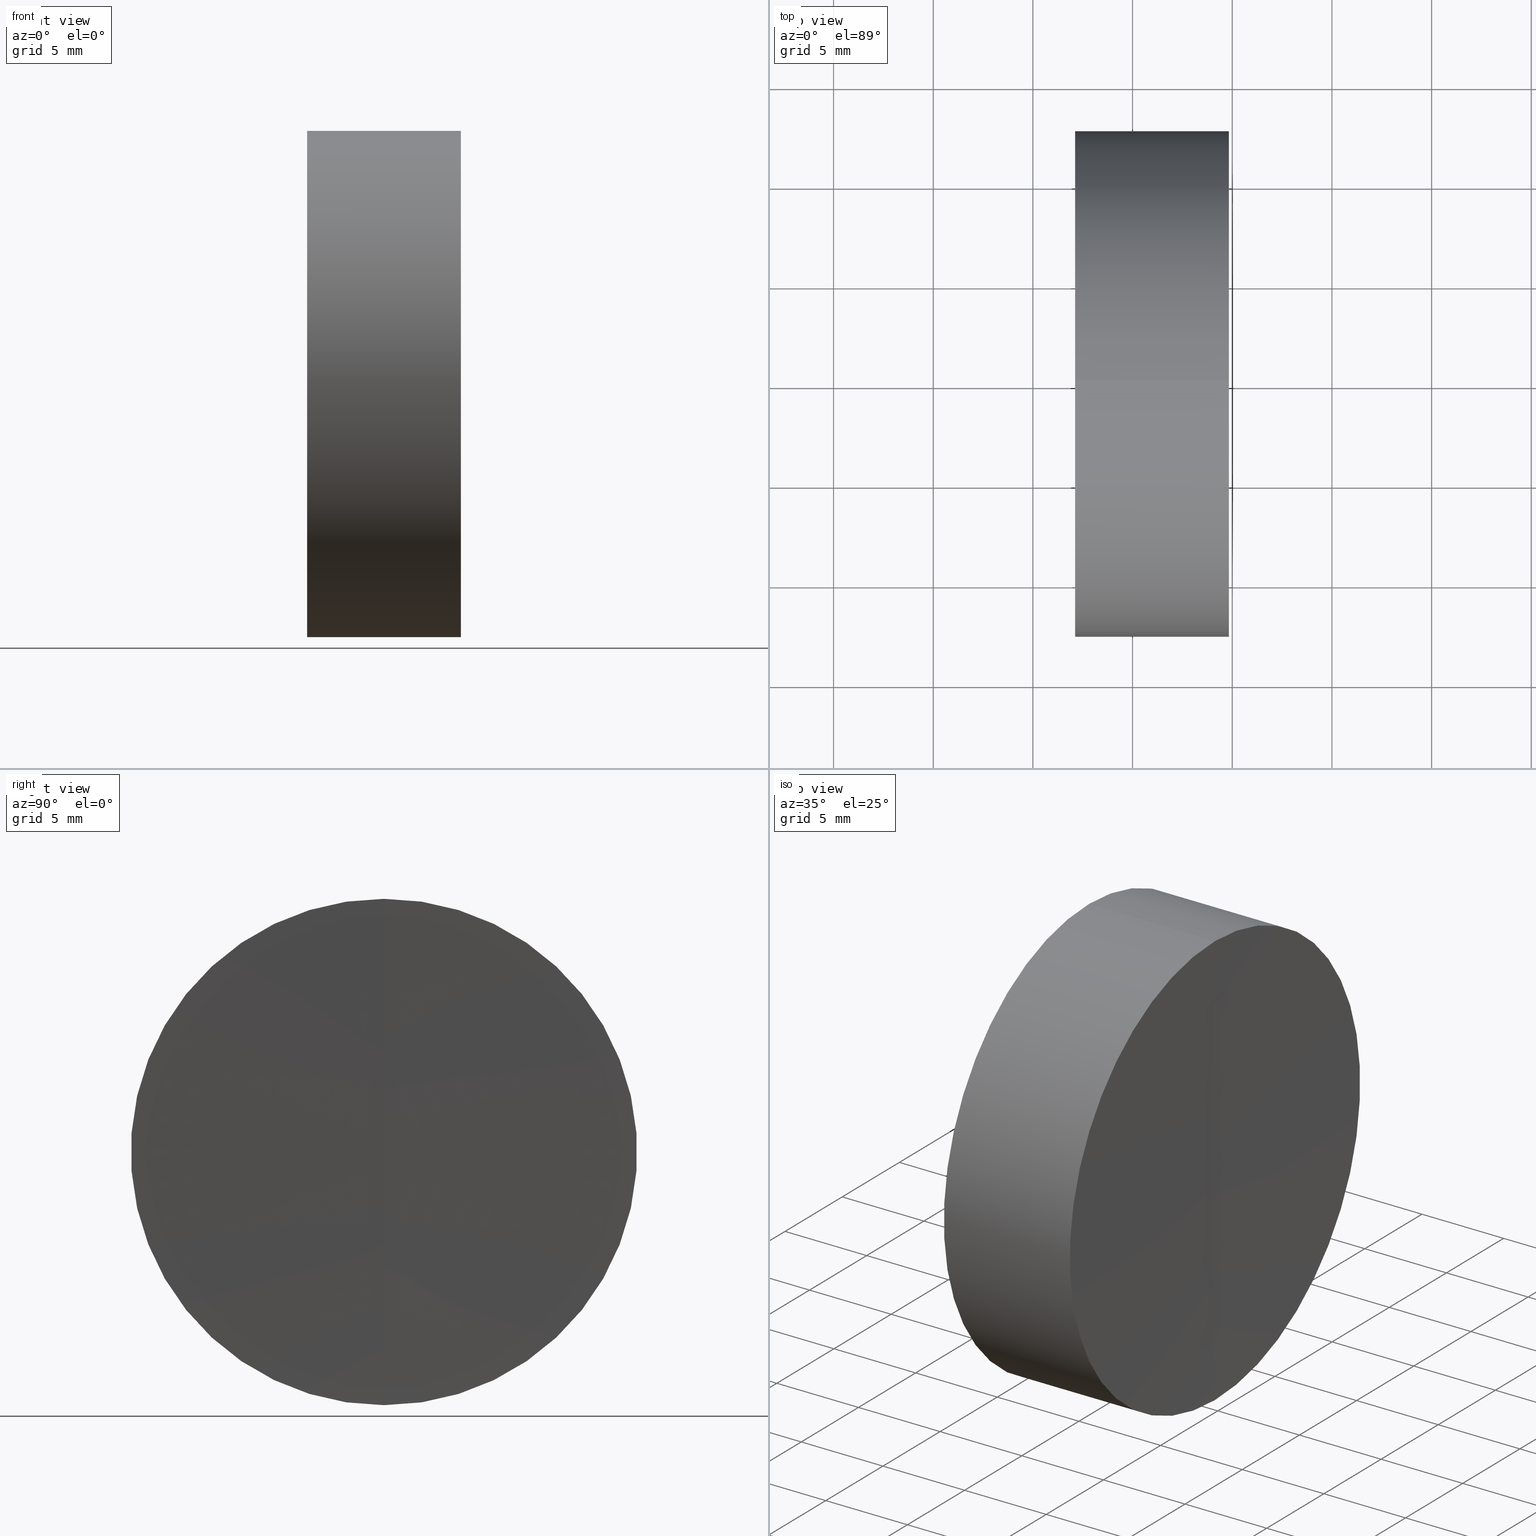
[diagram: canonical four-view strip — front | top / right | iso, engineering-drawing reading convention]
A machine part, canonical four-view strip (front | top / right | iso — engineering-drawing reading convention). The complete STEP part file that produces these views, byte-faithful:
ISO-10303-21;
HEADER;
FILE_DESCRIPTION (( 'STEP AP214' ),
    '1' );
FILE_NAME ('145200.STEP',
    '2019-06-13T07:39:02',
    ( 'user' ),
    ( '΢���й�' ),
    'SwSTEP 2.0',
    'SolidWorks 2016',
    '' );
FILE_SCHEMA (( 'AUTOMOTIVE_DESIGN' ));
ENDSEC;

DATA;
#1 = CIRCLE ( 'NONE', #185, 12.70000000000002900 ) ;
#2 = AXIS2_PLACEMENT_3D ( 'NONE', #339, #309, #262 ) ;
#3 = CIRCLE ( 'NONE', #310, 49.90000000000014800 ) ;
#4 = CIRCLE ( 'NONE', #167, 12.70000000000004500 ) ;
#5 = CARTESIAN_POINT ( 'NONE',  ( 859.6946505410971900, 0.0000000000000000000, 0.0000000000000000000 ) ) ;
#6 = FACE_OUTER_BOUND ( 'NONE', #227, .T. ) ;
#7 = ORIENTED_EDGE ( 'NONE', *, *, #250, .T. ) ;
#8 = DIRECTION ( 'NONE',  ( 0.0000000000000000000, 0.0000000000000000000, -1.000000000000000000 ) ) ;
#9 = CARTESIAN_POINT ( 'NONE',  ( -0.8160621761658039000, 0.0000000000000000000, 0.0000000000000000000 ) ) ;
#10 = AXIS2_PLACEMENT_3D ( 'NONE', #256, #120, #20 ) ;
#11 = DIRECTION ( 'NONE',  ( 0.0000000000000000000, 1.000000000000000000, 0.0000000000000000000 ) ) ;
#12 = DIRECTION ( 'NONE',  ( -1.000000000000000000, -0.0000000000000000000, 1.836970198721029900E-016 ) ) ;
#13 = SURFACE_STYLE_FILL_AREA ( #304 ) ;
#14 = ADVANCED_FACE ( 'NONE', ( #34 ), #329, .F. ) ;
#15 = DIRECTION ( 'NONE',  ( 0.0000000000000000000, 0.0000000000000000000, 1.000000000000000000 ) ) ;
#16 = MECHANICAL_DESIGN_GEOMETRIC_PRESENTATION_REPRESENTATION (  '', ( #174 ), #284 ) ;
#17 = ORIENTED_EDGE ( 'NONE', *, *, #293, .F. ) ;
#18 = CARTESIAN_POINT ( 'NONE',  ( 259.6946505410971900, 0.0000000000000000000, -3.673940397442059500E-014 ) ) ;
#19 = ADVANCED_FACE ( 'NONE', ( #207 ), #73, .F. ) ;
#20 = DIRECTION ( 'NONE',  ( 0.0000000000000000000, 0.0000000000000000000, 1.000000000000000000 ) ) ;
#21 = DIRECTION ( 'NONE',  ( -1.000000000000000000, -0.0000000000000000000, 1.836970198721029900E-016 ) ) ;
#22 = AXIS2_PLACEMENT_3D ( 'NONE', #181, #238, #302 ) ;
#23 = CIRCLE ( 'NONE', #347, 600.0000000000000000 ) ;
#24 = ORIENTED_EDGE ( 'NONE', *, *, #265, .F. ) ;
#25 = CIRCLE ( 'NONE', #2, 12.69999999999999900 ) ;
#26 = CIRCLE ( 'NONE', #277, 49.90000000000015500 ) ;
#27 = AXIS2_PLACEMENT_3D ( 'NONE', #171, #192, #144 ) ;
#28 = FACE_OUTER_BOUND ( 'NONE', #288, .T. ) ;
#29 = LINE ( 'NONE', #247, #332 ) ;
#30 = EDGE_CURVE ( 'NONE', #163, #271, #325, .T. ) ;
#31 = PRODUCT_DEFINITION_CONTEXT ( 'detailed design', #80, 'design' ) ;
#32 = CARTESIAN_POINT ( 'NONE',  ( 305.5946505410973400, 0.0000000000000000000, -3.235630404515127800E-022 ) ) ;
#33 = ADVANCED_FACE ( 'NONE', ( #6 ), #153, .F. ) ;
#34 = FACE_OUTER_BOUND ( 'NONE', #170, .T. ) ;
#35 = CARTESIAN_POINT ( 'NONE',  ( 257.3378375505981200, 0.0000000000000000000, -4.742210204816824600E-014 ) ) ;
#36 = CARTESIAN_POINT ( 'NONE',  ( 305.5946505410973400, 0.0000000000000000000, -3.235630404515127800E-022 ) ) ;
#37 = CYLINDRICAL_SURFACE ( 'NONE', #290, 12.70000000000001400 ) ;
#38 = EDGE_CURVE ( 'NONE', #113, #276, #315, .T. ) ;
#39 = DIRECTION ( 'NONE',  ( -2.249639673992786700E-032, -1.000000000000000000, -1.224646799147353200E-016 ) ) ;
#40 = ADVANCED_FACE ( 'NONE', ( #137 ), #98, .F. ) ;
#41 = CARTESIAN_POINT ( 'NONE',  ( 252.1199418144257200, 0.0000000000000000000, 0.0000000000000000000 ) ) ;
#42 = CLOSED_SHELL ( 'NONE', ( #19, #151, #33, #281, #182, #14 ) ) ;
#43 = DIRECTION ( 'NONE',  ( 0.0000000000000000000, 0.0000000000000000000, -1.000000000000000000 ) ) ;
#44 = VECTOR ( 'NONE', #21, 1000.000000000000000 ) ;
#45 = CARTESIAN_POINT ( 'NONE',  ( 305.5946505410973400, 0.0000000000000000000, -3.235630404515127800E-022 ) ) ;
#46 = ORIENTED_EDGE ( 'NONE', *, *, #38, .T. ) ;
#47 = DIRECTION ( 'NONE',  ( -1.000000000000000000, -0.0000000000000000000, 1.836970198721029900E-016 ) ) ;
#48 = STYLED_ITEM ( 'NONE', ( #55 ), #196 ) ;
#49 = DIRECTION ( 'NONE',  ( 0.0000000000000000000, 0.0000000000000000000, 1.000000000000000000 ) ) ;
#50 = CYLINDRICAL_SURFACE ( 'NONE', #131, 12.70000000000004500 ) ;
#51 = DIRECTION ( 'NONE',  ( 0.0000000000000000000, -1.224646799147353200E-016, 1.000000000000000000 ) ) ;
#52 = MANIFOLD_SOLID_BREP ( '��ת3', #140 ) ;
#53 = VERTEX_POINT ( 'NONE', #150 ) ;
#54 = PRESENTATION_LAYER_ASSIGNMENT (  '', '', ( #319 ) ) ;
#55 = PRESENTATION_STYLE_ASSIGNMENT (( #157 ) ) ;
#56 = AXIS2_PLACEMENT_3D ( 'NONE', #266, #121, #15 ) ;
#57 = ORIENTED_EDGE ( 'NONE', *, *, #274, .F. ) ;
#58 = ORIENTED_EDGE ( 'NONE', *, *, #229, .F. ) ;
#59 = ORIENTED_EDGE ( 'NONE', *, *, #275, .F. ) ;
#60 = FACE_OUTER_BOUND ( 'NONE', #312, .T. ) ;
#61 = ORIENTED_EDGE ( 'NONE', *, *, #211, .T. ) ;
#62 = ORIENTED_EDGE ( 'NONE', *, *, #275, .T. ) ;
#63 = CARTESIAN_POINT ( 'NONE',  ( 257.3378375505981200, 0.0000000000000000000, 0.0000000000000000000 ) ) ;
#64 = MECHANICAL_DESIGN_GEOMETRIC_PRESENTATION_REPRESENTATION (  '', ( #319 ), #231 ) ;
#65 = DIRECTION ( 'NONE',  ( 0.0000000000000000000, 1.000000000000000000, 0.0000000000000000000 ) ) ;
#66 = DIRECTION ( 'NONE',  ( 0.0000000000000000000, -1.000000000000000000, 0.0000000000000000000 ) ) ;
#67 = VERTEX_POINT ( 'NONE', #244 ) ;
#68 = DIRECTION ( 'NONE',  ( -1.000000000000000000, -0.0000000000000000000, 1.836970198721029900E-016 ) ) ;
#69 = CARTESIAN_POINT ( 'NONE',  ( 259.8290739324706900, 0.0000000000000000000, 0.0000000000000000000 ) ) ;
#70 = CIRCLE ( 'NONE', #225, 49.90000000000014800 ) ;
#71 = AXIS2_PLACEMENT_3D ( 'NONE', #5, #96, #342 ) ;
#72 = CARTESIAN_POINT ( 'NONE',  ( 305.5946505410973400, 0.0000000000000000000, -3.235630404515127800E-022 ) ) ;
#73 = SPHERICAL_SURFACE ( 'NONE', #152, 49.90000000000014800 ) ;
#74 = EDGE_LOOP ( 'NONE', ( #59, #91, #61 ) ) ;
#75 = PRODUCT_DEFINITION_FORMATION_WITH_SPECIFIED_SOURCE ( '�κ�', '', #81, .NOT_KNOWN. ) ;
#76 = APPLICATION_CONTEXT ( 'automotive_design' ) ;
#77 = DIRECTION ( 'NONE',  ( 0.0000000000000000000, 0.0000000000000000000, 1.000000000000000000 ) ) ;
#78 = FACE_OUTER_BOUND ( 'NONE', #336, .T. ) ;
#79 = DIRECTION ( 'NONE',  ( -1.000000000000000000, -0.0000000000000000000, 1.836970198721029900E-016 ) ) ;
#80 = APPLICATION_CONTEXT ( 'automotive_design' ) ;
#81 = PRODUCT ( '145200', '145200', '', ( #198 ) ) ;
#82 = ORIENTED_EDGE ( 'NONE', *, *, #230, .T. ) ;
#83 = AXIS2_PLACEMENT_3D ( 'NONE', #88, #148, #8 ) ;
#84 = LINE ( 'NONE', #307, #240 ) ;
#85 = CIRCLE ( 'NONE', #114, 12.69999999999999900 ) ;
#86 = PRESENTATION_STYLE_ASSIGNMENT (( #218 ) ) ;
#87 = FACE_OUTER_BOUND ( 'NONE', #317, .T. ) ;
#88 = CARTESIAN_POINT ( 'NONE',  ( 305.5946505410973400, 0.0000000000000000000, -3.235630404515127800E-022 ) ) ;
#89 = AXIS2_PLACEMENT_3D ( 'NONE', #222, #267, #326 ) ;
#90 = CARTESIAN_POINT ( 'NONE',  ( 255.6946505410971900, 0.0000000000000000000, 6.110987204182271600E-015 ) ) ;
#91 = ORIENTED_EDGE ( 'NONE', *, *, #136, .T. ) ;
#92 = DIRECTION ( 'NONE',  ( -0.0000000000000000000, -1.000000000000000000, -0.0000000000000000000 ) ) ;
#93 = CARTESIAN_POINT ( 'NONE',  ( 252.1199418144257200, 0.0000000000000000000, 12.69999999999998900 ) ) ;
#94 = EDGE_CURVE ( 'NONE', #295, #243, #115, .T. ) ;
#95 = COLOUR_RGB ( '',1.000000000000000000, 1.000000000000000000, 1.000000000000000000 ) ;
#96 = DIRECTION ( 'NONE',  ( -0.0000000000000000000, -1.000000000000000000, -0.0000000000000000000 ) ) ;
#97 = CARTESIAN_POINT ( 'NONE',  ( 253.6946505410974200, 0.0000000000000000000, -6.368163305871125600E-015 ) ) ;
#98 = SPHERICAL_SURFACE ( 'NONE', #71, 600.0000000000000000 ) ;
#99 = AXIS2_PLACEMENT_3D ( 'NONE', #45, #66, #105 ) ;
#100 = FACE_OUTER_BOUND ( 'NONE', #74, .T. ) ;
#101 = EDGE_CURVE ( 'NONE', #53, #133, #165, .T. ) ;
#102 = CARTESIAN_POINT ( 'NONE',  ( 257.3378375505981200, 0.0000000000000000000, 12.69999999999999900 ) ) ;
#103 =( NAMED_UNIT ( * ) SI_UNIT ( $, .STERADIAN. ) SOLID_ANGLE_UNIT ( ) );
#104 = ORIENTED_EDGE ( 'NONE', *, *, #211, .F. ) ;
#105 = DIRECTION ( 'NONE',  ( 0.0000000000000000000, 0.0000000000000000000, -1.000000000000000000 ) ) ;
#106 = APPLICATION_PROTOCOL_DEFINITION ( 'draft international standard', 'automotive_design', 1998, #80 ) ;
#107 =( NAMED_UNIT ( * ) PLANE_ANGLE_UNIT ( ) SI_UNIT ( $, .RADIAN. ) );
#108 = CARTESIAN_POINT ( 'NONE',  ( -0.8160621761658039000, 0.0000000000000000000, 0.0000000000000000000 ) ) ;
#109 = AXIS2_PLACEMENT_3D ( 'NONE', #340, #199, #299 ) ;
#110 = APPLICATION_PROTOCOL_DEFINITION ( 'draft international standard', 'automotive_design', 1998, #76 ) ;
#111 =( LENGTH_UNIT ( ) NAMED_UNIT ( * ) SI_UNIT ( .MILLI., .METRE. ) );
#112 = SURFACE_SIDE_STYLE ('',( #160 ) ) ;
#113 = VERTEX_POINT ( 'NONE', #97 ) ;
#114 = AXIS2_PLACEMENT_3D ( 'NONE', #69, #154, #194 ) ;
#115 = CIRCLE ( 'NONE', #22, 12.70000000000002900 ) ;
#116 =( GEOMETRIC_REPRESENTATION_CONTEXT ( 3 ) GLOBAL_UNCERTAINTY_ASSIGNED_CONTEXT ( ( #301 ) ) GLOBAL_UNIT_ASSIGNED_CONTEXT ( ( #316, #107, #117 ) ) REPRESENTATION_CONTEXT ( 'NONE', 'WORKASPACE' ) );
#117 =( NAMED_UNIT ( * ) SI_UNIT ( $, .STERADIAN. ) SOLID_ANGLE_UNIT ( ) );
#118 = PRODUCT_DEFINITION ( 'δ֪', '', #75, #31 ) ;
#119 = ORIENTED_EDGE ( 'NONE', *, *, #254, .T. ) ;
#120 = DIRECTION ( 'NONE',  ( -0.0000000000000000000, 1.000000000000000000, 0.0000000000000000000 ) ) ;
#121 = DIRECTION ( 'NONE',  ( -1.000000000000000000, -0.0000000000000000000, -0.0000000000000000000 ) ) ;
#122 =( NAMED_UNIT ( * ) SI_UNIT ( $, .STERADIAN. ) SOLID_ANGLE_UNIT ( ) );
#123 = ORIENTED_EDGE ( 'NONE', *, *, #30, .T. ) ;
#124 = DIRECTION ( 'NONE',  ( -1.000000000000000000, -0.0000000000000000000, -0.0000000000000000000 ) ) ;
#125 = AXIS2_PLACEMENT_3D ( 'NONE', #311, #68, #77 ) ;
#126 = CYLINDRICAL_SURFACE ( 'NONE', #323, 12.70000000000004500 ) ;
#127 = DIRECTION ( 'NONE',  ( -1.000000000000000000, -0.0000000000000000000, 1.836970198721029900E-016 ) ) ;
#128 = ORIENTED_EDGE ( 'NONE', *, *, #30, .F. ) ;
#129 = DIRECTION ( 'NONE',  ( -1.000000000000000000, -0.0000000000000000000, -0.0000000000000000000 ) ) ;
#130 = DIRECTION ( 'NONE',  ( 1.000000000000000000, 0.0000000000000000000, 0.0000000000000000000 ) ) ;
#131 = AXIS2_PLACEMENT_3D ( 'NONE', #9, #127, #285 ) ;
#132 = FACE_OUTER_BOUND ( 'NONE', #257, .T. ) ;
#133 = VERTEX_POINT ( 'NONE', #18 ) ;
#134 = CARTESIAN_POINT ( 'NONE',  ( 252.1199418144257200, 0.0000000000000000000, -4.646359015143001300E-014 ) ) ;
#135 = ORIENTED_EDGE ( 'NONE', *, *, #186, .F. ) ;
#136 = EDGE_CURVE ( 'NONE', #243, #295, #1, .T. ) ;
#137 = FACE_OUTER_BOUND ( 'NONE', #330, .T. ) ;
#138 = DIRECTION ( 'NONE',  ( 0.0000000000000000000, 0.0000000000000000000, 1.000000000000000000 ) ) ;
#139 = DIRECTION ( 'NONE',  ( 0.0000000000000000000, 0.0000000000000000000, 1.000000000000000000 ) ) ;
#140 = CLOSED_SHELL ( 'NONE', ( #305, #161, #291, #286, #259, #40 ) ) ;
#141 = FACE_OUTER_BOUND ( 'NONE', #212, .T. ) ;
#142 = ORIENTED_EDGE ( 'NONE', *, *, #136, .F. ) ;
#143 = ORIENTED_EDGE ( 'NONE', *, *, #254, .F. ) ;
#144 = DIRECTION ( 'NONE',  ( 0.0000000000000000000, -1.224646799147353000E-016, 1.000000000000000000 ) ) ;
#145 = COLOUR_RGB ( '',1.000000000000000000, 1.000000000000000000, 1.000000000000000000 ) ;
#146 = ORIENTED_EDGE ( 'NONE', *, *, #293, .T. ) ;
#147 = DIRECTION ( 'NONE',  ( -1.000000000000000000, -0.0000000000000000000, -0.0000000000000000000 ) ) ;
#148 = DIRECTION ( 'NONE',  ( -0.0000000000000000000, -1.000000000000000000, -0.0000000000000000000 ) ) ;
#149 = VERTEX_POINT ( 'NONE', #90 ) ;
#150 = CARTESIAN_POINT ( 'NONE',  ( 259.8290739324706900, 1.555301434917139400E-015, -12.69999999999999900 ) ) ;
#151 = ADVANCED_FACE ( 'NONE', ( #249 ), #50, .T. ) ;
#152 = AXIS2_PLACEMENT_3D ( 'NONE', #32, #92, #258 ) ;
#153 = SPHERICAL_SURFACE ( 'NONE', #10, 52.00000000000003600 ) ;
#154 = DIRECTION ( 'NONE',  ( -1.000000000000000000, -0.0000000000000000000, -0.0000000000000000000 ) ) ;
#155 = CARTESIAN_POINT ( 'NONE',  ( 859.6946505410971900, 0.0000000000000000000, 0.0000000000000000000 ) ) ;
#156 = ORIENTED_EDGE ( 'NONE', *, *, #260, .F. ) ;
#157 = SURFACE_STYLE_USAGE ( .BOTH. , #112 ) ;
#158 = PRODUCT_RELATED_PRODUCT_CATEGORY ( 'part', '', ( #81 ) ) ;
#159 = DIRECTION ( 'NONE',  ( -0.0000000000000000000, -1.000000000000000000, -0.0000000000000000000 ) ) ;
#160 = SURFACE_STYLE_FILL_AREA ( #345 ) ;
#161 = ADVANCED_FACE ( 'NONE', ( #78 ), #255, .T. ) ;
#162 = DIRECTION ( 'NONE',  ( 0.0000000000000000000, 0.0000000000000000000, 1.000000000000000000 ) ) ;
#163 = VERTEX_POINT ( 'NONE', #102 ) ;
#164 = UNCERTAINTY_MEASURE_WITH_UNIT (LENGTH_MEASURE( 1.000000000000000100E-005 ), #111, 'distance_accuracy_value', 'NONE');
#165 = CIRCLE ( 'NONE', #89, 600.0000000000000000 ) ;
#166 = DIRECTION ( 'NONE',  ( 1.878145495644174200E-016, 0.0000000000000000000, 1.000000000000000000 ) ) ;
#167 = AXIS2_PLACEMENT_3D ( 'NONE', #134, #217, #139 ) ;
#168 = CARTESIAN_POINT ( 'NONE',  ( 0.0000000000000000000, 0.0000000000000000000, 0.0000000000000000000 ) ) ;
#169 =( LENGTH_UNIT ( ) NAMED_UNIT ( * ) SI_UNIT ( .MILLI., .METRE. ) );
#170 = EDGE_LOOP ( 'NONE', ( #273, #253, #251 ) ) ;
#171 = CARTESIAN_POINT ( 'NONE',  ( 201.6946505410973600, 0.0000000000000000000, 4.969511586685587000E-023 ) ) ;
#172 = AXIS2_PLACEMENT_3D ( 'NONE', #195, #214, #43 ) ;
#173 = CIRCLE ( 'NONE', #125, 12.70000000000004500 ) ;
#174 = STYLED_ITEM ( 'NONE', ( #343 ), #228 ) ;
#175 = EDGE_CURVE ( 'NONE', #264, #133, #23, .T. ) ;
#176 = ORIENTED_EDGE ( 'NONE', *, *, #327, .T. ) ;
#177 = DIRECTION ( 'NONE',  ( 0.0000000000000000000, 0.0000000000000000000, 1.000000000000000000 ) ) ;
#178 = CARTESIAN_POINT ( 'NONE',  ( 257.3378375505981200, 1.555301434917142800E-015, -12.70000000000003500 ) ) ;
#179 = PRODUCT_DEFINITION_SHAPE ( 'NONE', 'NONE',  #118 ) ;
#180 = LINE ( 'NONE', #220, #272 ) ;
#181 = CARTESIAN_POINT ( 'NONE',  ( 257.3378375505981200, 0.0000000000000000000, 0.0000000000000000000 ) ) ;
#182 = ADVANCED_FACE ( 'NONE', ( #28 ), #126, .T. ) ;
#183 = ORIENTED_EDGE ( 'NONE', *, *, #38, .F. ) ;
#184 = SURFACE_SIDE_STYLE ('',( #13 ) ) ;
#185 = AXIS2_PLACEMENT_3D ( 'NONE', #63, #124, #49 ) ;
#186 = EDGE_CURVE ( 'NONE', #53, #264, #25, .T. ) ;
#187 = SURFACE_STYLE_USAGE ( .BOTH. , #338 ) ;
#188 = UNCERTAINTY_MEASURE_WITH_UNIT (LENGTH_MEASURE( 1.000000000000000100E-005 ), #280, 'distance_accuracy_value', 'NONE');
#189 = SPHERICAL_SURFACE ( 'NONE', #216, 600.0000000000000000 ) ;
#190 =( NAMED_UNIT ( * ) SI_UNIT ( $, .STERADIAN. ) SOLID_ANGLE_UNIT ( ) );
#191 = FILL_AREA_STYLE_COLOUR ( '', #206 ) ;
#192 = DIRECTION ( 'NONE',  ( 2.249639673992786700E-032, 1.000000000000000000, 1.224646799147353200E-016 ) ) ;
#193 = ORIENTED_EDGE ( 'NONE', *, *, #294, .F. ) ;
#194 = DIRECTION ( 'NONE',  ( 0.0000000000000000000, 0.0000000000000000000, 1.000000000000000000 ) ) ;
#195 = CARTESIAN_POINT ( 'NONE',  ( 201.6946505410973600, 0.0000000000000000000, 4.969511586685587000E-023 ) ) ;
#196 = ADVANCED_BREP_SHAPE_REPRESENTATION ( '145200', ( #228, #52, #334 ), #306 ) ;
#197 = SPHERICAL_SURFACE ( 'NONE', #109, 52.00000000000003600 ) ;
#198 = PRODUCT_CONTEXT ( 'NONE', #76, 'mechanical' ) ;
#199 = DIRECTION ( 'NONE',  ( -0.0000000000000000000, 1.000000000000000000, 0.0000000000000000000 ) ) ;
#200 = MECHANICAL_DESIGN_GEOMETRIC_PRESENTATION_REPRESENTATION (  '', ( #48 ), #116 ) ;
#201 = ORIENTED_EDGE ( 'NONE', *, *, #327, .F. ) ;
#202 = ORIENTED_EDGE ( 'NONE', *, *, #265, .T. ) ;
#203 = DIRECTION ( 'NONE',  ( 0.0000000000000000000, 0.0000000000000000000, 1.000000000000000000 ) ) ;
#204 = DIRECTION ( 'NONE',  ( 0.0000000000000000000, 0.0000000000000000000, 1.000000000000000000 ) ) ;
#205 = ORIENTED_EDGE ( 'NONE', *, *, #252, .F. ) ;
#206 = COLOUR_RGB ( '',1.000000000000000000, 1.000000000000000000, 1.000000000000000000 ) ;
#207 = FACE_OUTER_BOUND ( 'NONE', #318, .T. ) ;
#208 = ORIENTED_EDGE ( 'NONE', *, *, #294, .T. ) ;
#209 = PRESENTATION_LAYER_ASSIGNMENT (  '', '', ( #48 ) ) ;
#210 = SHAPE_DEFINITION_REPRESENTATION ( #179, #196 ) ;
#211 = EDGE_CURVE ( 'NONE', #295, #279, #224, .T. ) ;
#212 = EDGE_LOOP ( 'NONE', ( #24, #314, #341, #142 ) ) ;
#213 = DIRECTION ( 'NONE',  ( 0.0000000000000000000, 1.224646799147353200E-016, -1.000000000000000000 ) ) ;
#214 = DIRECTION ( 'NONE',  ( 0.0000000000000000000, -1.000000000000000000, 0.0000000000000000000 ) ) ;
#215 = ORIENTED_EDGE ( 'NONE', *, *, #94, .F. ) ;
#216 = AXIS2_PLACEMENT_3D ( 'NONE', #328, #159, #344 ) ;
#217 = DIRECTION ( 'NONE',  ( -1.000000000000000000, -0.0000000000000000000, 1.836970198721029900E-016 ) ) ;
#218 = SURFACE_STYLE_USAGE ( .BOTH. , #184 ) ;
#219 = ORIENTED_EDGE ( 'NONE', *, *, #175, .F. ) ;
#220 = CARTESIAN_POINT ( 'NONE',  ( 252.1199418144257200, 0.0000000000000000000, 12.70000000000001400 ) ) ;
#221 = DIRECTION ( 'NONE',  ( -0.0000000000000000000, 1.000000000000000000, 1.224646799147353200E-016 ) ) ;
#222 = CARTESIAN_POINT ( 'NONE',  ( 859.6946505410971900, 0.0000000000000000000, 0.0000000000000000000 ) ) ;
#223 = ORIENTED_EDGE ( 'NONE', *, *, #101, .T. ) ;
#224 = CIRCLE ( 'NONE', #99, 49.90000000000015500 ) ;
#225 = AXIS2_PLACEMENT_3D ( 'NONE', #289, #239, #203 ) ;
#226 = EDGE_LOOP ( 'NONE', ( #123, #119, #193, #205 ) ) ;
#227 = EDGE_LOOP ( 'NONE', ( #183, #176, #146 ) ) ;
#228 = MANIFOLD_SOLID_BREP ( '��ת1', #42 ) ;
#229 = EDGE_CURVE ( 'NONE', #264, #53, #85, .T. ) ;
#230 = EDGE_CURVE ( 'NONE', #163, #149, #3, .T. ) ;
#231 =( GEOMETRIC_REPRESENTATION_CONTEXT ( 3 ) GLOBAL_UNCERTAINTY_ASSIGNED_CONTEXT ( ( #188 ) ) GLOBAL_UNIT_ASSIGNED_CONTEXT ( ( #280, #333, #122 ) ) REPRESENTATION_CONTEXT ( 'NONE', 'WORKASPACE' ) );
#232 = LINE ( 'NONE', #241, #44 ) ;
#233 = DIRECTION ( 'NONE',  ( -1.000000000000000000, -0.0000000000000000000, 1.836970198721029900E-016 ) ) ;
#234 = ORIENTED_EDGE ( 'NONE', *, *, #229, .T. ) ;
#235 = DIRECTION ( 'NONE',  ( 0.0000000000000000000, -1.000000000000000000, -1.224646799147353200E-016 ) ) ;
#236 = FILL_AREA_STYLE_COLOUR ( '', #95 ) ;
#237 = AXIS2_PLACEMENT_3D ( 'NONE', #35, #79, #204 ) ;
#238 = DIRECTION ( 'NONE',  ( -1.000000000000000000, -0.0000000000000000000, -0.0000000000000000000 ) ) ;
#239 = DIRECTION ( 'NONE',  ( -0.0000000000000000000, 1.000000000000000000, 0.0000000000000000000 ) ) ;
#240 = VECTOR ( 'NONE', #147, 1000.000000000000000 ) ;
#241 = CARTESIAN_POINT ( 'NONE',  ( -0.8160621761658015700, 0.0000000000000000000, 12.70000000000004500 ) ) ;
#242 = CARTESIAN_POINT ( 'NONE',  ( 305.5946505410973400, 0.0000000000000000000, -3.235630404515127800E-022 ) ) ;
#243 = VERTEX_POINT ( 'NONE', #178 ) ;
#244 = CARTESIAN_POINT ( 'NONE',  ( 252.1199418144257200, 1.555301434917142800E-015, -12.70000000000004500 ) ) ;
#245 = CARTESIAN_POINT ( 'NONE',  ( 259.8290739324706900, 0.0000000000000000000, 12.69999999999999900 ) ) ;
#246 = AXIS2_PLACEMENT_3D ( 'NONE', #36, #11, #177 ) ;
#247 = CARTESIAN_POINT ( 'NONE',  ( -0.8160621761658063400, 1.555301434917144300E-015, -12.70000000000004500 ) ) ;
#248 = DIRECTION ( 'NONE',  ( 0.0000000000000000000, 1.224646799147353200E-016, -1.000000000000000000 ) ) ;
#249 = FACE_OUTER_BOUND ( 'NONE', #226, .T. ) ;
#250 = EDGE_CURVE ( 'NONE', #271, #163, #303, .T. ) ;
#251 = ORIENTED_EDGE ( 'NONE', *, *, #260, .T. ) ;
#252 = EDGE_CURVE ( 'NONE', #163, #276, #232, .T. ) ;
#253 = ORIENTED_EDGE ( 'NONE', *, *, #250, .F. ) ;
#254 = EDGE_CURVE ( 'NONE', #271, #67, #29, .T. ) ;
#255 = CYLINDRICAL_SURFACE ( 'NONE', #56, 12.70000000000001400 ) ;
#256 = CARTESIAN_POINT ( 'NONE',  ( 201.6946505410973600, 0.0000000000000000000, 4.969511586685587000E-023 ) ) ;
#257 = EDGE_LOOP ( 'NONE', ( #58, #346, #322 ) ) ;
#258 = DIRECTION ( 'NONE',  ( 0.0000000000000000000, 0.0000000000000000000, -1.000000000000000000 ) ) ;
#259 = ADVANCED_FACE ( 'NONE', ( #141 ), #37, .T. ) ;
#260 = EDGE_CURVE ( 'NONE', #271, #149, #70, .T. ) ;
#261 = ORIENTED_EDGE ( 'NONE', *, *, #252, .T. ) ;
#262 = DIRECTION ( 'NONE',  ( 0.0000000000000000000, 0.0000000000000000000, 1.000000000000000000 ) ) ;
#263 = PRESENTATION_LAYER_ASSIGNMENT (  '', '', ( #174 ) ) ;
#264 = VERTEX_POINT ( 'NONE', #245 ) ;
#265 = EDGE_CURVE ( 'NONE', #53, #243, #84, .T. ) ;
#266 = CARTESIAN_POINT ( 'NONE',  ( 252.1199418144257200, 0.0000000000000000000, 0.0000000000000000000 ) ) ;
#267 = DIRECTION ( 'NONE',  ( 0.0000000000000000000, 1.000000000000000000, -0.0000000000000000000 ) ) ;
#268 = ORIENTED_EDGE ( 'NONE', *, *, #94, .T. ) ;
#269 = AXIS2_PLACEMENT_3D ( 'NONE', #72, #65, #162 ) ;
#270 = FILL_AREA_STYLE ('',( #313 ) ) ;
#271 = VERTEX_POINT ( 'NONE', #337 ) ;
#272 = VECTOR ( 'NONE', #129, 1000.000000000000000 ) ;
#273 = ORIENTED_EDGE ( 'NONE', *, *, #230, .F. ) ;
#274 = EDGE_CURVE ( 'NONE', #264, #295, #180, .T. ) ;
#275 = EDGE_CURVE ( 'NONE', #243, #279, #26, .T. ) ;
#276 = VERTEX_POINT ( 'NONE', #93 ) ;
#277 = AXIS2_PLACEMENT_3D ( 'NONE', #242, #221, #51 ) ;
#278 = CARTESIAN_POINT ( 'NONE',  ( 257.3378375505981200, 0.0000000000000000000, 12.70000000000003500 ) ) ;
#279 = VERTEX_POINT ( 'NONE', #287 ) ;
#280 =( LENGTH_UNIT ( ) NAMED_UNIT ( * ) SI_UNIT ( .MILLI., .METRE. ) );
#281 = ADVANCED_FACE ( 'NONE', ( #60 ), #197, .F. ) ;
#282 = DIRECTION ( 'NONE',  ( 0.0000000000000000000, 0.0000000000000000000, 1.000000000000000000 ) ) ;
#283 = SPHERICAL_SURFACE ( 'NONE', #269, 49.90000000000015500 ) ;
#284 =( GEOMETRIC_REPRESENTATION_CONTEXT ( 3 ) GLOBAL_UNCERTAINTY_ASSIGNED_CONTEXT ( ( #164 ) ) GLOBAL_UNIT_ASSIGNED_CONTEXT ( ( #111, #331, #103 ) ) REPRESENTATION_CONTEXT ( 'NONE', 'WORKASPACE' ) );
#285 = DIRECTION ( 'NONE',  ( 1.878145495644174200E-016, 0.0000000000000000000, 1.000000000000000000 ) ) ;
#286 = ADVANCED_FACE ( 'NONE', ( #100 ), #308, .T. ) ;
#287 = CARTESIAN_POINT ( 'NONE',  ( 255.6946505410971900, 0.0000000000000000000, 3.055493440309615300E-015 ) ) ;
#288 = EDGE_LOOP ( 'NONE', ( #143, #7, #261, #17 ) ) ;
#289 = CARTESIAN_POINT ( 'NONE',  ( 305.5946505410973400, 0.0000000000000000000, -3.235630404515127800E-022 ) ) ;
#290 = AXIS2_PLACEMENT_3D ( 'NONE', #41, #292, #282 ) ;
#291 = ADVANCED_FACE ( 'NONE', ( #87 ), #283, .T. ) ;
#292 = DIRECTION ( 'NONE',  ( -1.000000000000000000, -0.0000000000000000000, -0.0000000000000000000 ) ) ;
#293 = EDGE_CURVE ( 'NONE', #67, #276, #173, .T. ) ;
#294 = EDGE_CURVE ( 'NONE', #276, #67, #4, .T. ) ;
#295 = VERTEX_POINT ( 'NONE', #278 ) ;
#296 =( NAMED_UNIT ( * ) PLANE_ANGLE_UNIT ( ) SI_UNIT ( $, .RADIAN. ) );
#297 = AXIS2_PLACEMENT_3D ( 'NONE', #300, #233, #324 ) ;
#298 = CIRCLE ( 'NONE', #27, 52.00000000000003600 ) ;
#299 = DIRECTION ( 'NONE',  ( 0.0000000000000000000, 0.0000000000000000000, 1.000000000000000000 ) ) ;
#300 = CARTESIAN_POINT ( 'NONE',  ( 257.3378375505981200, 0.0000000000000000000, -4.742210204816824600E-014 ) ) ;
#301 = UNCERTAINTY_MEASURE_WITH_UNIT (LENGTH_MEASURE( 1.000000000000000100E-005 ), #316, 'distance_accuracy_value', 'NONE');
#302 = DIRECTION ( 'NONE',  ( 0.0000000000000000000, 0.0000000000000000000, 1.000000000000000000 ) ) ;
#303 = CIRCLE ( 'NONE', #237, 12.70000000000004500 ) ;
#304 = FILL_AREA_STYLE ('',( #236 ) ) ;
#305 = ADVANCED_FACE ( 'NONE', ( #132 ), #189, .F. ) ;
#306 =( GEOMETRIC_REPRESENTATION_CONTEXT ( 3 ) GLOBAL_UNCERTAINTY_ASSIGNED_CONTEXT ( ( #320 ) ) GLOBAL_UNIT_ASSIGNED_CONTEXT ( ( #169, #296, #190 ) ) REPRESENTATION_CONTEXT ( 'NONE', 'WORKASPACE' ) );
#307 = CARTESIAN_POINT ( 'NONE',  ( 252.1199418144257200, 1.555301434917140200E-015, -12.70000000000001400 ) ) ;
#308 = SPHERICAL_SURFACE ( 'NONE', #246, 49.90000000000015500 ) ;
#309 = DIRECTION ( 'NONE',  ( -1.000000000000000000, -0.0000000000000000000, -0.0000000000000000000 ) ) ;
#310 = AXIS2_PLACEMENT_3D ( 'NONE', #335, #39, #248 ) ;
#311 = CARTESIAN_POINT ( 'NONE',  ( 252.1199418144257200, 0.0000000000000000000, -4.646359015143001300E-014 ) ) ;
#312 = EDGE_LOOP ( 'NONE', ( #201, #46, #208 ) ) ;
#313 = FILL_AREA_STYLE_COLOUR ( '', #145 ) ;
#314 = ORIENTED_EDGE ( 'NONE', *, *, #186, .T. ) ;
#315 = CIRCLE ( 'NONE', #172, 52.00000000000003600 ) ;
#316 =( LENGTH_UNIT ( ) NAMED_UNIT ( * ) SI_UNIT ( .MILLI., .METRE. ) );
#317 = EDGE_LOOP ( 'NONE', ( #268, #62, #104 ) ) ;
#318 = EDGE_LOOP ( 'NONE', ( #128, #82, #156 ) ) ;
#319 = STYLED_ITEM ( 'NONE', ( #86 ), #52 ) ;
#320 = UNCERTAINTY_MEASURE_WITH_UNIT (LENGTH_MEASURE( 1.000000000000000100E-005 ), #169, 'distance_accuracy_value', 'NONE');
#321 = SURFACE_STYLE_FILL_AREA ( #270 ) ;
#322 = ORIENTED_EDGE ( 'NONE', *, *, #101, .F. ) ;
#323 = AXIS2_PLACEMENT_3D ( 'NONE', #108, #12, #166 ) ;
#324 = DIRECTION ( 'NONE',  ( 0.0000000000000000000, 0.0000000000000000000, 1.000000000000000000 ) ) ;
#325 = CIRCLE ( 'NONE', #297, 12.70000000000004500 ) ;
#326 = DIRECTION ( 'NONE',  ( 0.0000000000000000000, 0.0000000000000000000, 1.000000000000000000 ) ) ;
#327 = EDGE_CURVE ( 'NONE', #113, #67, #298, .T. ) ;
#328 = CARTESIAN_POINT ( 'NONE',  ( 859.6946505410971900, 0.0000000000000000000, 0.0000000000000000000 ) ) ;
#329 = SPHERICAL_SURFACE ( 'NONE', #83, 49.90000000000014800 ) ;
#330 = EDGE_LOOP ( 'NONE', ( #219, #135, #223 ) ) ;
#331 =( NAMED_UNIT ( * ) PLANE_ANGLE_UNIT ( ) SI_UNIT ( $, .RADIAN. ) );
#332 = VECTOR ( 'NONE', #47, 1000.000000000000000 ) ;
#333 =( NAMED_UNIT ( * ) PLANE_ANGLE_UNIT ( ) SI_UNIT ( $, .RADIAN. ) );
#334 = AXIS2_PLACEMENT_3D ( 'NONE', #168, #138, #130 ) ;
#335 = CARTESIAN_POINT ( 'NONE',  ( 305.5946505410973400, 0.0000000000000000000, -3.235630404515127800E-022 ) ) ;
#336 = EDGE_LOOP ( 'NONE', ( #234, #202, #215, #57 ) ) ;
#337 = CARTESIAN_POINT ( 'NONE',  ( 257.3378375505981200, 1.555301434917144300E-015, -12.70000000000009300 ) ) ;
#338 = SURFACE_SIDE_STYLE ('',( #321 ) ) ;
#339 = CARTESIAN_POINT ( 'NONE',  ( 259.8290739324706900, 0.0000000000000000000, 0.0000000000000000000 ) ) ;
#340 = CARTESIAN_POINT ( 'NONE',  ( 201.6946505410973600, 0.0000000000000000000, 4.969511586685587000E-023 ) ) ;
#341 = ORIENTED_EDGE ( 'NONE', *, *, #274, .T. ) ;
#342 = DIRECTION ( 'NONE',  ( 0.0000000000000000000, 0.0000000000000000000, -1.000000000000000000 ) ) ;
#343 = PRESENTATION_STYLE_ASSIGNMENT (( #187 ) ) ;
#344 = DIRECTION ( 'NONE',  ( 0.0000000000000000000, 0.0000000000000000000, -1.000000000000000000 ) ) ;
#345 = FILL_AREA_STYLE ('',( #191 ) ) ;
#346 = ORIENTED_EDGE ( 'NONE', *, *, #175, .T. ) ;
#347 = AXIS2_PLACEMENT_3D ( 'NONE', #155, #235, #213 ) ;
ENDSEC;
END-ISO-10303-21;
